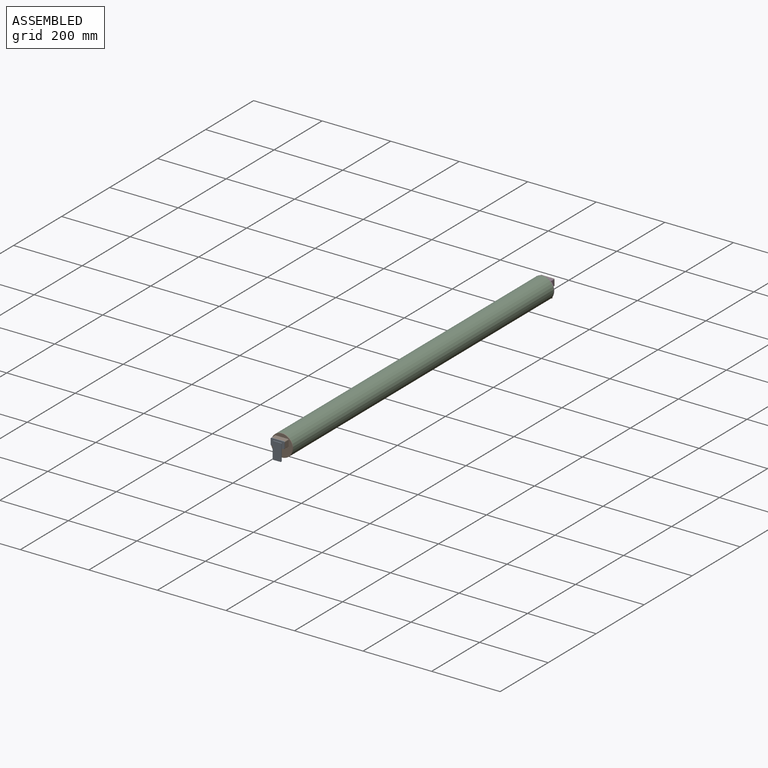
[diagram: assembled view]
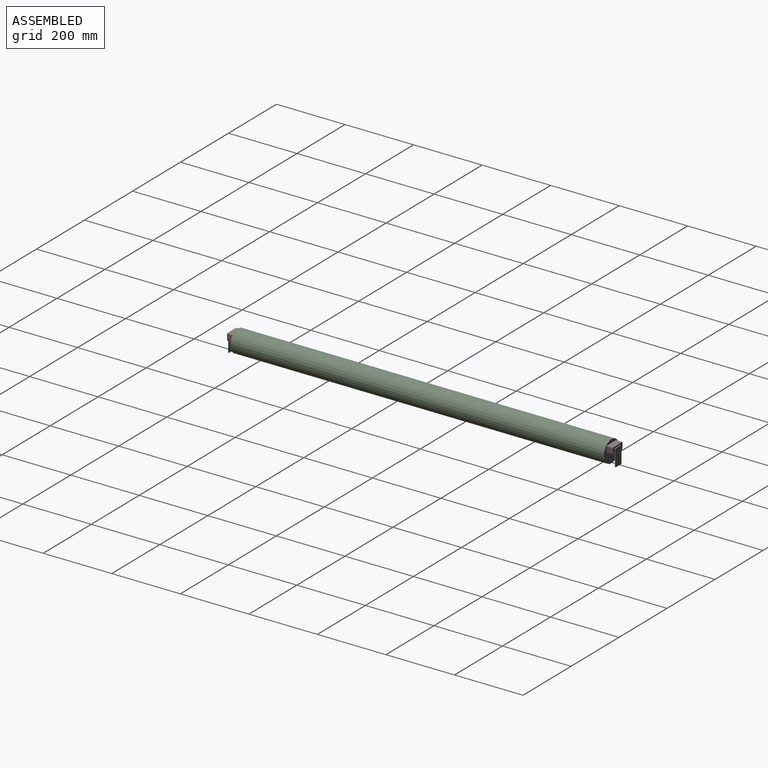
[diagram: assembled view, second angle]
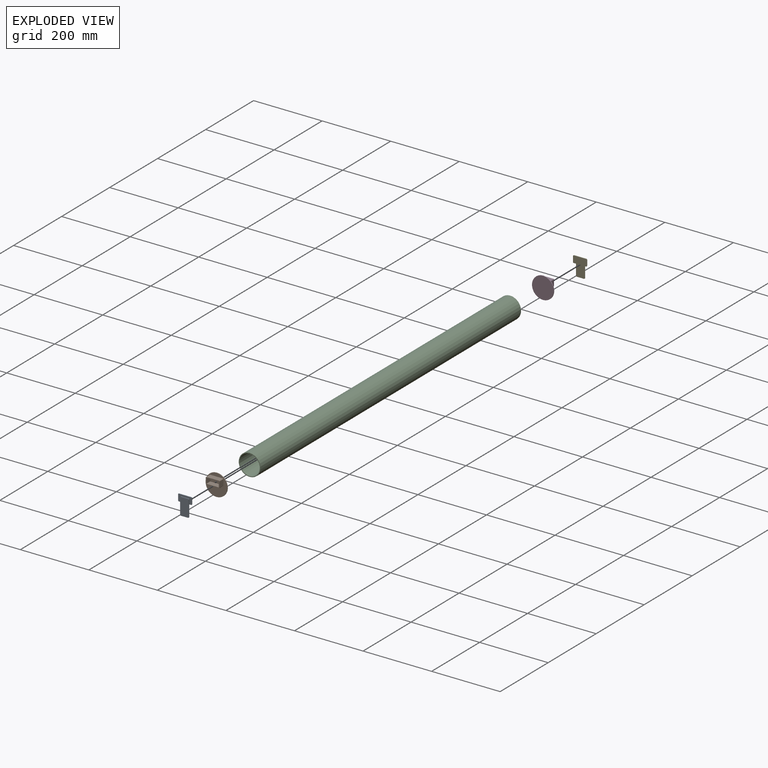
[diagram: exploded view]
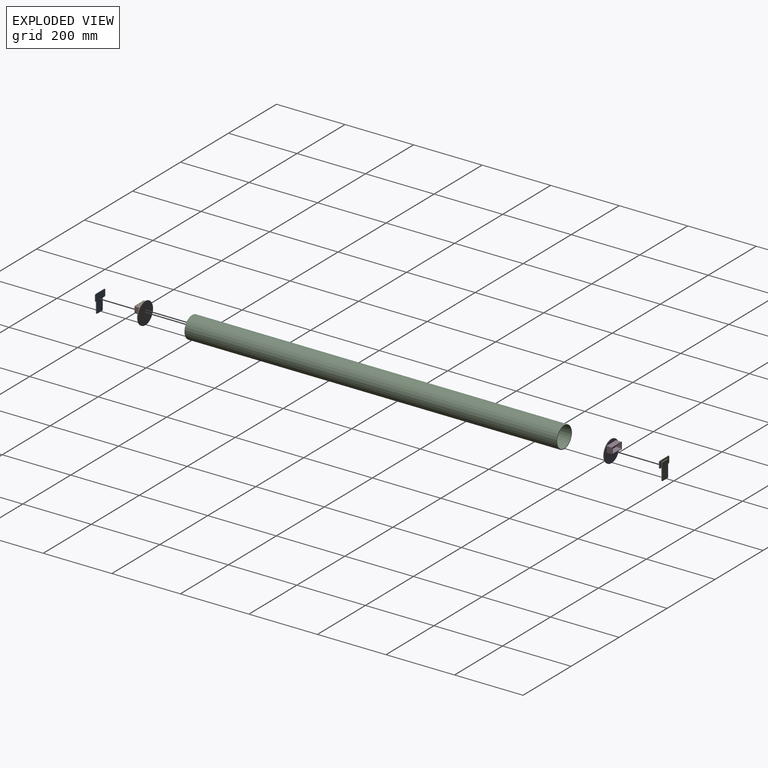
[diagram: exploded view, second angle]
ASSEMBLY  parts=5 mates=4
PART A: 20 faces, bbox 40x4.3x55 mm
  f0: plane 40x20mm, normal (0,-1,0), area 423.3mm2, adj f1,f2,f3,f4,f7,f8,f9,f12
  f1: plane 36x2mm, normal (0,0,1), area 72mm2, adj f0,f5,f12,f15
  f2: plane 16x2mm, normal (-1,0,0), area 32mm2, adj f0,f5,f12,f13
  f3: plane 36x2mm, normal (0,0,-1), area 72mm2, adj f0,f5,f6,f13,f14
  f4: plane 16x2mm, normal (1,0,0), area 32mm2, adj f0,f5,f14,f15
  f5: plane 40x20mm, normal (0,1,0), area 796.6mm2, adj f1,f2,f3,f4,f12,f13,f14,f15
  f6: plane 35x25mm, normal (0,1,0), area 873.3mm2, adj f3,f7,f9,f10,f16,f17
  f7: plane 46x2.28mm, normal (1,0,0), area 104.9mm2, adj f0,f6,f11,f17,f19
  f8: plane 21x2.28mm, normal (0,0,1), area 47.9mm2, adj f0,f11,f18,f19
  f9: plane 46x2.28mm, normal (-1,0,0), area 104.9mm2, adj f0,f6,f11,f16,f18
  f10: plane 21x2.28mm, normal (0,0,-1), area 47.9mm2, adj f6,f11,f16,f17
  f11: plane 50x25mm, normal (0,-1,0), area 1246.6mm2, adj f7,f8,f9,f10,f16,f17,f18,f19
  f12: cylinder r=2mm len=2mm, axis (0,-1,0), area 6.3mm2, adj f0,f1,f2,f5
  f13: cylinder r=2mm len=2mm, axis (0,1,0), area 6.3mm2, adj f0,f2,f3,f5
  f14: cylinder r=2mm len=2mm, axis (0,-1,0), area 6.3mm2, adj f0,f3,f4,f5
  f15: cylinder r=2mm len=2mm, axis (0,1,0), area 6.3mm2, adj f0,f1,f4,f5
  f16: cylinder r=2mm len=2.28mm, axis (0,1,0), area 7.2mm2, adj f6,f9,f10,f11
  f17: cylinder r=2mm len=2.28mm, axis (0,-1,0), area 7.2mm2, adj f6,f7,f10,f11
  f18: cylinder r=2mm len=2.28mm, axis (0,-1,0), area 7.2mm2, adj f0,f8,f9,f11
  f19: cylinder r=2mm len=2.28mm, axis (0,1,0), area 7.2mm2, adj f0,f7,f8,f11
PART B: 21 faces, bbox 63.5x18x63.5 mm
  f0: plane 63.5x63.5mm, normal (0,-1,0), area 2370.4mm2, adj f1,f3,f4,f5,f10,f13,f14,f15
  f1: cylinder r=31.75mm len=63.5mm, axis (0,1,0), area 399mm2, adj f0,f2
  f2: plane 63.5x63.5mm, normal (0,1,0), area 3166.9mm2, adj f1
  f3: plane 36x16mm, normal (0,0,1), area 576mm2, adj f0,f11,f13,f16
  f4: plane 16x16mm, normal (-1,0,0), area 256mm2, adj f0,f11,f13,f14
  f5: plane 36x16mm, normal (0,0,-1), area 576mm2, adj f0,f11,f14,f15
  f6: plane 16x13.64mm, normal (1,0,0), area 218.2mm2, adj f11,f12,f17,f20
  f7: plane 33.64x16mm, normal (0,0,-1), area 538.2mm2, adj f11,f12,f17,f18
  f8: plane 16x13.64mm, normal (-1,0,0), area 218.2mm2, adj f11,f12,f18,f19
  f9: plane 33.64x16mm, normal (0,0,1), area 538.2mm2, adj f11,f12,f19,f20
  f10: plane 16x16mm, normal (1,0,0), area 256mm2, adj f0,f11,f15,f16
  f11: plane 40x20mm, normal (0,-1,0), area 240mm2, adj f3,f4,f5,f6,f7,f8,f9,f10
  f12: plane 35.64x15.64mm, normal (0,-1,0), area 556.6mm2, adj f6,f7,f8,f9,f17,f18,f19,f20
  f13: cylinder r=2mm len=16mm, axis (0,-1,0), area 50.3mm2, adj f0,f3,f4,f11
  f14: cylinder r=2mm len=16mm, axis (0,1,0), area 50.3mm2, adj f0,f4,f5,f11
  f15: cylinder r=2mm len=16mm, axis (0,-1,0), area 50.3mm2, adj f0,f5,f10,f11
  f16: cylinder r=2mm len=16mm, axis (0,1,0), area 50.3mm2, adj f0,f3,f10,f11
  f17: cylinder r=1mm len=16mm, axis (0,1,0), area 25.1mm2, adj f6,f7,f11,f12
  f18: cylinder r=1mm len=16mm, axis (0,-1,0), area 25.1mm2, adj f7,f8,f11,f12
  f19: cylinder r=1mm len=16mm, axis (0,1,0), area 25.1mm2, adj f8,f9,f11,f12
  f20: cylinder r=1mm len=16mm, axis (0,-1,0), area 25.1mm2, adj f6,f9,f11,f12
PART C: 4 faces, bbox 63.5x1086x63.5 mm
  f0: cylinder r=29.75mm len=1086mm, axis (0,1,0), area 203000.3mm2, adj f2,f3
  f1: cylinder r=31.75mm len=1086mm, axis (0,1,0), area 216647.4mm2, adj f2,f3
  f2: plane 63.5x63.5mm, normal (0,-1,0), area 386.4mm2, adj f0,f1
  f3: plane 63.5x63.5mm, normal (0,1,0), area 386.4mm2, adj f0,f1
PART D: same geometry as B
PART E: same geometry as A
PLACE A t=(-544.41,-662.89,-490.04)mm
PLACE B t=(-564.41,-644.89,-492.04)mm
PLACE C t=(-564.41,441.11,-492.04)mm
PLACE D rot(axis=(0,0,1),180deg) t=(-564.41,441.11,-492.04)mm
PLACE E rot(axis=(0,0,1),180deg) t=(-584.41,459.11,-490.04)mm
MATE fastened C.f0 <-> B.f1  axis (0,1,0) through (-564.41,-644.89,-492.04)mm
MATE fastened A.f5 <-> B.f11  axis (0,1,0) through (-564.41,-662.89,-480.04)mm
MATE fastened E.f5 <-> D.f11  axis (0,-1,0) through (-564.41,459.11,-480.04)mm
MATE fastened D.f1 <-> C.f0  axis (0,-1,0) through (-564.41,441.11,-492.04)mm
